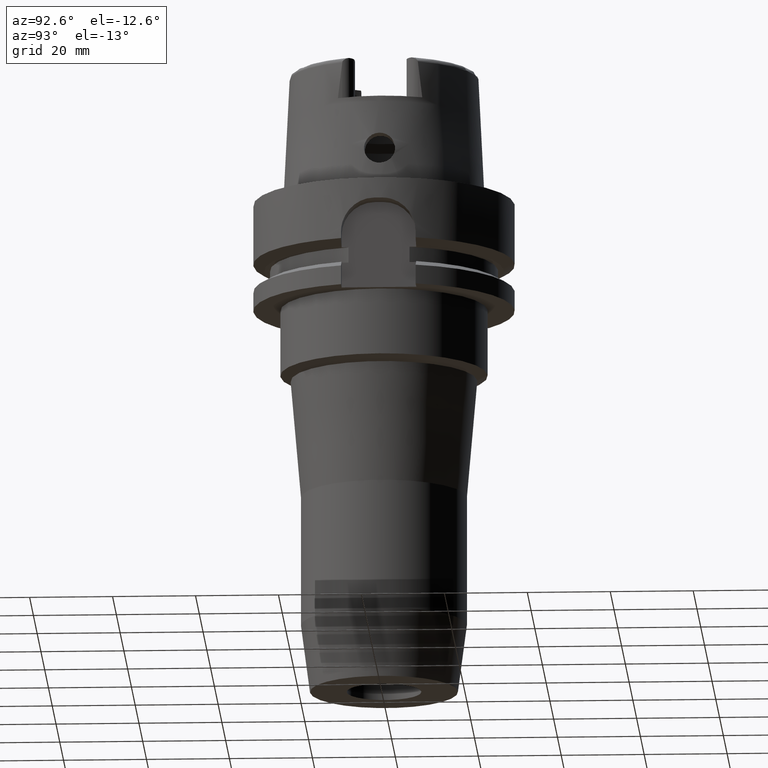
[diagram: clean part render]
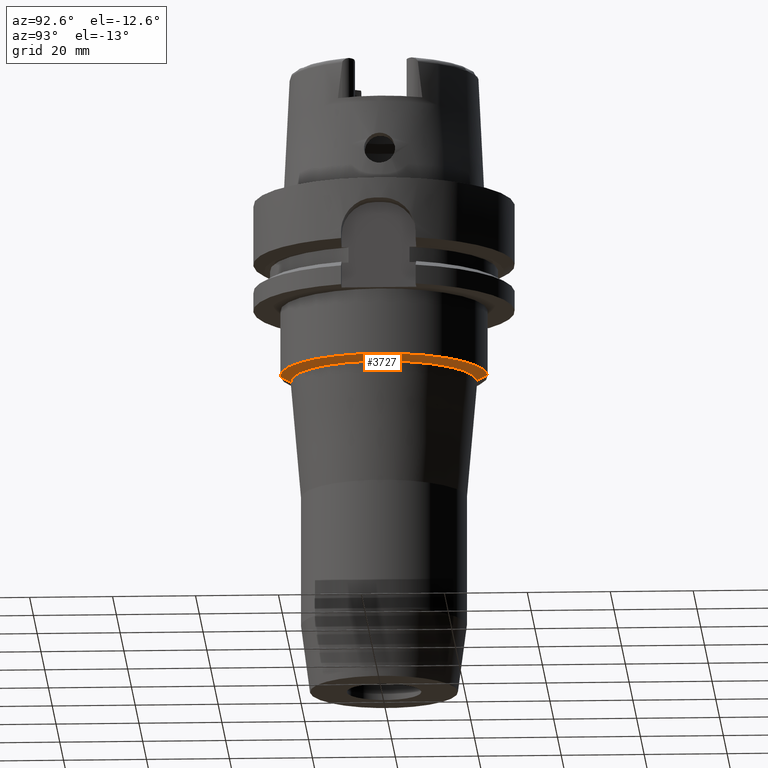
[diagram: same view with one face highlighted and labeled with its STEP entity id]
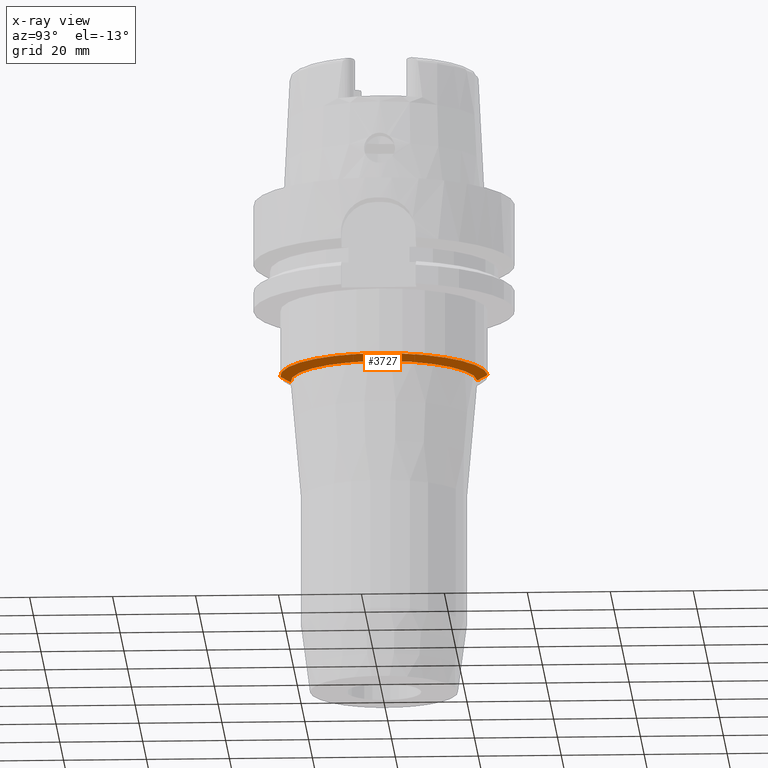
[diagram: x-ray of the same camera — body ghosted, the highlighted face saturated]
A machine part, auxiliary view. The second image highlights one B-rep face of the part: STEP entity #3727.
The next image is the same camera in x-ray: the body ghosted, the highlighted face saturated — about 0% of this face is hidden behind the body in this view.
In plain terms, the highlighted conical surface has half-angle 61.58 deg.
Its self-contained STEP definition (entity closure, byte-faithful):
#1627=DIRECTION('',(0.E0,-8.794824951097E-1,-4.759312353644E-1));
#1628=VECTOR('',#1627,2.835026299304E0);
#1629=CARTESIAN_POINT('',(0.E0,2.5E1,-4.2E1));
#1630=LINE('',#1629,#1628);
#1634=CARTESIAN_POINT('',(0.E0,0.E0,-4.2E1));
#1635=DIRECTION('',(0.E0,0.E0,1.E0));
#1636=DIRECTION('',(0.E0,-1.E0,0.E0));
#1637=AXIS2_PLACEMENT_3D('',#1634,#1635,#1636);
#1650=DIRECTION('',(0.E0,8.794824951097E-1,-4.759312353644E-1));
#1651=VECTOR('',#1650,2.835026299304E0);
#1652=CARTESIAN_POINT('',(0.E0,-2.5E1,-4.2E1));
#1653=LINE('',#1652,#1651);
#1695=CARTESIAN_POINT('',(0.E0,0.E0,-4.334927756892E1));
#1696=DIRECTION('',(0.E0,0.E0,1.E0));
#1697=DIRECTION('',(0.E0,-1.E0,0.E0));
#1698=AXIS2_PLACEMENT_3D('',#1695,#1696,#1697);
#2476=CARTESIAN_POINT('',(0.E0,2.250664399659E1,-4.334927756892E1));
#2477=VERTEX_POINT('',#2476);
#2478=CARTESIAN_POINT('',(0.E0,-2.250664399659E1,-4.334927756892E1));
#2479=VERTEX_POINT('',#2478);
#2480=CARTESIAN_POINT('',(0.E0,2.5E1,-4.2E1));
#2481=VERTEX_POINT('',#2480);
#2482=CARTESIAN_POINT('',(0.E0,-2.5E1,-4.2E1));
#2483=VERTEX_POINT('',#2482);
#3713=CARTESIAN_POINT('',(0.E0,0.E0,-4.267463878446E1));
#3714=DIRECTION('',(0.E0,0.E0,1.E0));
#3715=DIRECTION('',(0.E0,1.E0,0.E0));
#3716=AXIS2_PLACEMENT_3D('',#3713,#3714,#3715);
#3717=CONICAL_SURFACE('',#3716,2.375332199829E1,6.158E1);
#3719=ORIENTED_EDGE('',*,*,#3718,.T.);
#3721=ORIENTED_EDGE('',*,*,#3720,.F.);
#3723=ORIENTED_EDGE('',*,*,#3722,.F.);
#3724=ORIENTED_EDGE('',*,*,#3706,.T.);
#3725=EDGE_LOOP('',(#3719,#3721,#3723,#3724));
#3726=FACE_OUTER_BOUND('',#3725,.F.);
#1638=CIRCLE('',#1637,2.5E1);
#1699=CIRCLE('',#1698,2.250664399658E1);
#3706=EDGE_CURVE('',#2483,#2481,#1638,.T.);
#3718=EDGE_CURVE('',#2481,#2477,#1630,.T.);
#3720=EDGE_CURVE('',#2479,#2477,#1699,.T.);
#3722=EDGE_CURVE('',#2483,#2479,#1653,.T.);
#3727=ADVANCED_FACE('',(#3726),#3717,.T.);